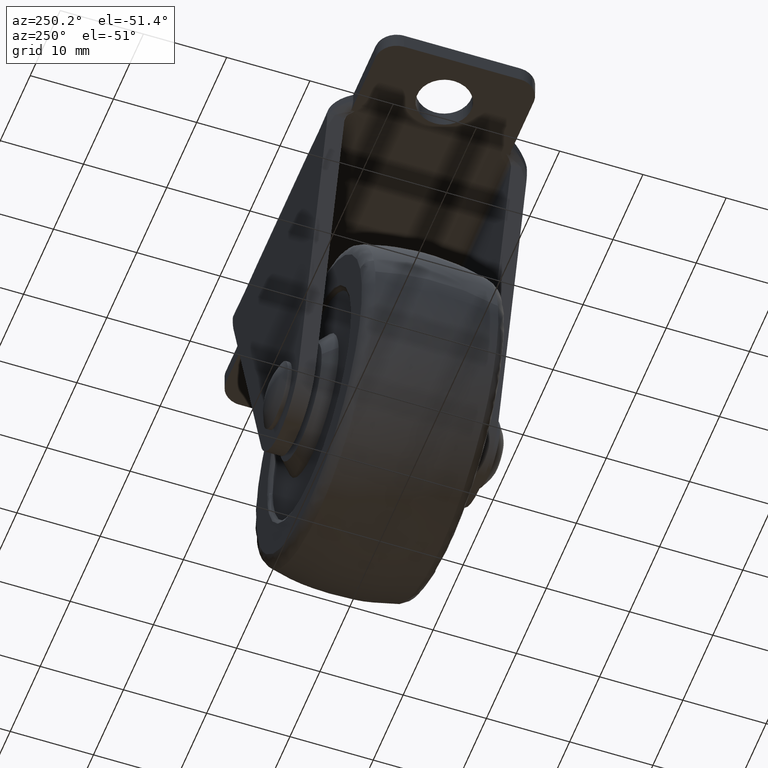
[diagram: clean part render]
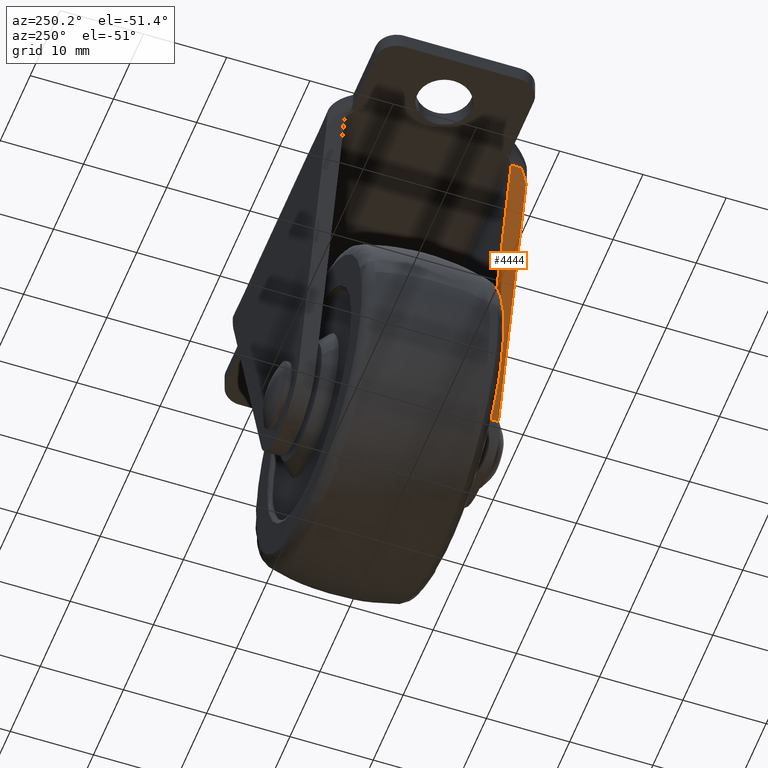
[diagram: same view with one face highlighted and labeled with its STEP entity id]
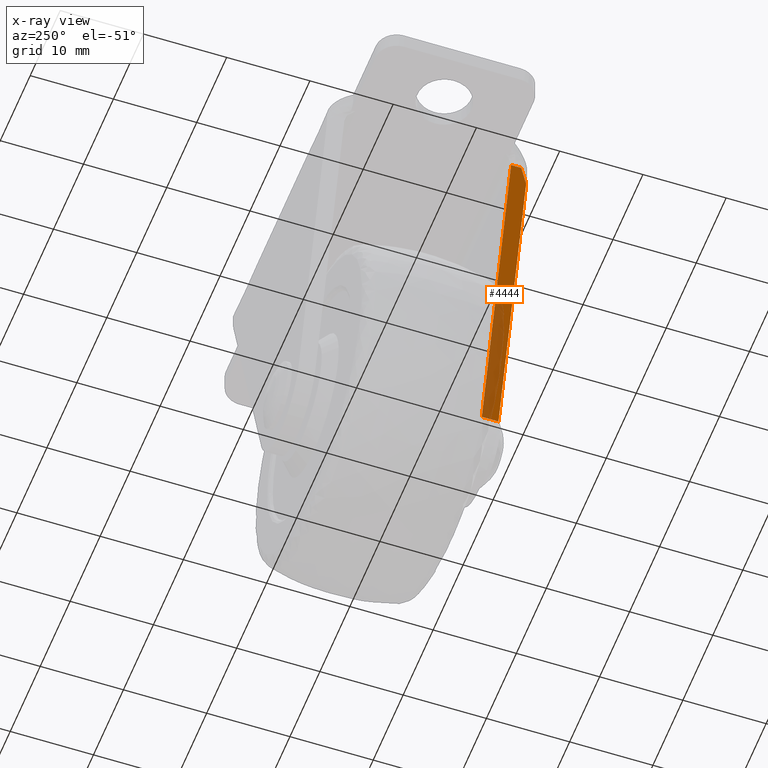
[diagram: x-ray of the same camera — body ghosted, the highlighted face saturated]
A machine part, auxiliary view. The second image highlights one B-rep face of the part: STEP entity #4444.
The next image is the same camera in x-ray: the body ghosted, the highlighted face saturated — about 32% of this face is hidden behind the body in this view.
In plain terms, the highlighted face is a freeform B-spline surface patch.
Its self-contained STEP definition (entity closure, byte-faithful):
#3349=CARTESIAN_POINT('',(-16.041948858347350,-11.212101081747999,-2.723713004510235));
#3350=VERTEX_POINT('',#3349);
#3364=CARTESIAN_POINT('',(-15.490419615570950,-12.0,-4.642229161097630));
#3365=VERTEX_POINT('',#3364);
#3366=CARTESIAN_POINT('',(-15.490419615570950,-12.0,-4.642229161097630));
#3367=CARTESIAN_POINT('',(-16.041948858347350,-11.212101081747999,-2.723713004510235));
#3368=QUASI_UNIFORM_CURVE('',1,(#3366,#3367),.UNSPECIFIED.,.F.,.U.);
#3369=EDGE_CURVE('',#3365,#3350,#3368,.T.);
#4125=CARTESIAN_POINT('',(-16.041948858347350,-9.961075177144519,-2.723713004510235));
#4126=VERTEX_POINT('',#4125);
#4177=CARTESIAN_POINT('',(-15.962522705542749,-10.0,-2.999999999999560));
#4178=VERTEX_POINT('',#4177);
#4184=CARTESIAN_POINT('',(-16.041948858347350,-9.961075177144519,-2.723713004510254));
#4185=CARTESIAN_POINT('',(-16.003024035491869,-9.999999999999998,-2.859114531298971));
#4186=CARTESIAN_POINT('',(-15.962522705542749,-10.0,-2.999999999999560));
#4194=(BOUNDED_CURVE()B_SPLINE_CURVE(2,(#4184,#4185,#4186),.UNSPECIFIED.,.F.,.U.)CURVE()GEOMETRIC_REPRESENTATION_ITEM()QUASI_UNIFORM_CURVE()RATIONAL_B_SPLINE_CURVE((1.0,0.990220979666759,1.0))REPRESENTATION_ITEM(''));
#4195=EDGE_CURVE('',#4126,#4178,#4194,.T.);
#4375=CARTESIAN_POINT('',(-16.041948858347350,-11.212101081747999,-2.723713004510235));
#4376=CARTESIAN_POINT('',(-16.041948858347350,-9.961075177144519,-2.723713004510235));
#4377=QUASI_UNIFORM_CURVE('',1,(#4375,#4376),.UNSPECIFIED.,.F.,.U.);
#4378=EDGE_CURVE('',#3350,#4126,#4377,.T.);
#4415=CARTESIAN_POINT('',(-5.757731300855954,-12.101844305518741,-38.497768143605533));
#4416=CARTESIAN_POINT('',(-16.531207321946962,-12.101844305518741,-1.021808201715500));
#4417=CARTESIAN_POINT('',(-5.757731300855954,-9.859230525267016,-38.497768143605533));
#4418=CARTESIAN_POINT('',(-16.531207321946962,-9.859230525267016,-1.021808201715500));
#4419=B_SPLINE_SURFACE_WITH_KNOTS('',1,1,((#4415,#4417),(#4416,#4418)),.UNSPECIFIED.,.F.,.F.,.U.,(2,2),(2,2),(0.0,38.993786160658587),(0.0,2.242613780251729),.UNSPECIFIED.);
#4420=CARTESIAN_POINT('',(-6.246989151439200,-12.0,-36.795865473212253));
#4421=VERTEX_POINT('',#4420);
#4422=CARTESIAN_POINT('',(-6.246989151439200,-12.0,-36.795865473212253));
#4423=CARTESIAN_POINT('',(-15.490419615570950,-12.0,-4.642229161097630));
#4424=QUASI_UNIFORM_CURVE('',1,(#4422,#4423),.UNSPECIFIED.,.F.,.U.);
#4425=EDGE_CURVE('',#4421,#3365,#4424,.T.);
#4426=ORIENTED_EDGE('',*,*,#4425,.T.);
#4427=ORIENTED_EDGE('',*,*,#3369,.T.);
#4428=ORIENTED_EDGE('',*,*,#4378,.T.);
#4429=ORIENTED_EDGE('',*,*,#4195,.T.);
#4430=CARTESIAN_POINT('',(-6.246989151439200,-10.0,-36.795865473212253));
#4431=VERTEX_POINT('',#4430);
#4432=CARTESIAN_POINT('',(-15.962522705542749,-10.0,-2.999999999999560));
#4433=CARTESIAN_POINT('',(-6.246989151439200,-10.0,-36.795865473212253));
#4434=QUASI_UNIFORM_CURVE('',1,(#4432,#4433),.UNSPECIFIED.,.F.,.U.);
#4435=EDGE_CURVE('',#4178,#4431,#4434,.T.);
#4436=ORIENTED_EDGE('',*,*,#4435,.T.);
#4437=CARTESIAN_POINT('',(-6.246989151439200,-12.0,-36.795865473212253));
#4438=CARTESIAN_POINT('',(-6.246989151439200,-10.0,-36.795865473212253));
#4439=QUASI_UNIFORM_CURVE('',1,(#4437,#4438),.UNSPECIFIED.,.F.,.U.);
#4440=EDGE_CURVE('',#4421,#4431,#4439,.T.);
#4441=ORIENTED_EDGE('',*,*,#4440,.F.);
#4442=EDGE_LOOP('',(#4426,#4427,#4428,#4429,#4436,#4441));
#4443=FACE_OUTER_BOUND('',#4442,.T.);
#4444=ADVANCED_FACE('',(#4443),#4419,.T.);